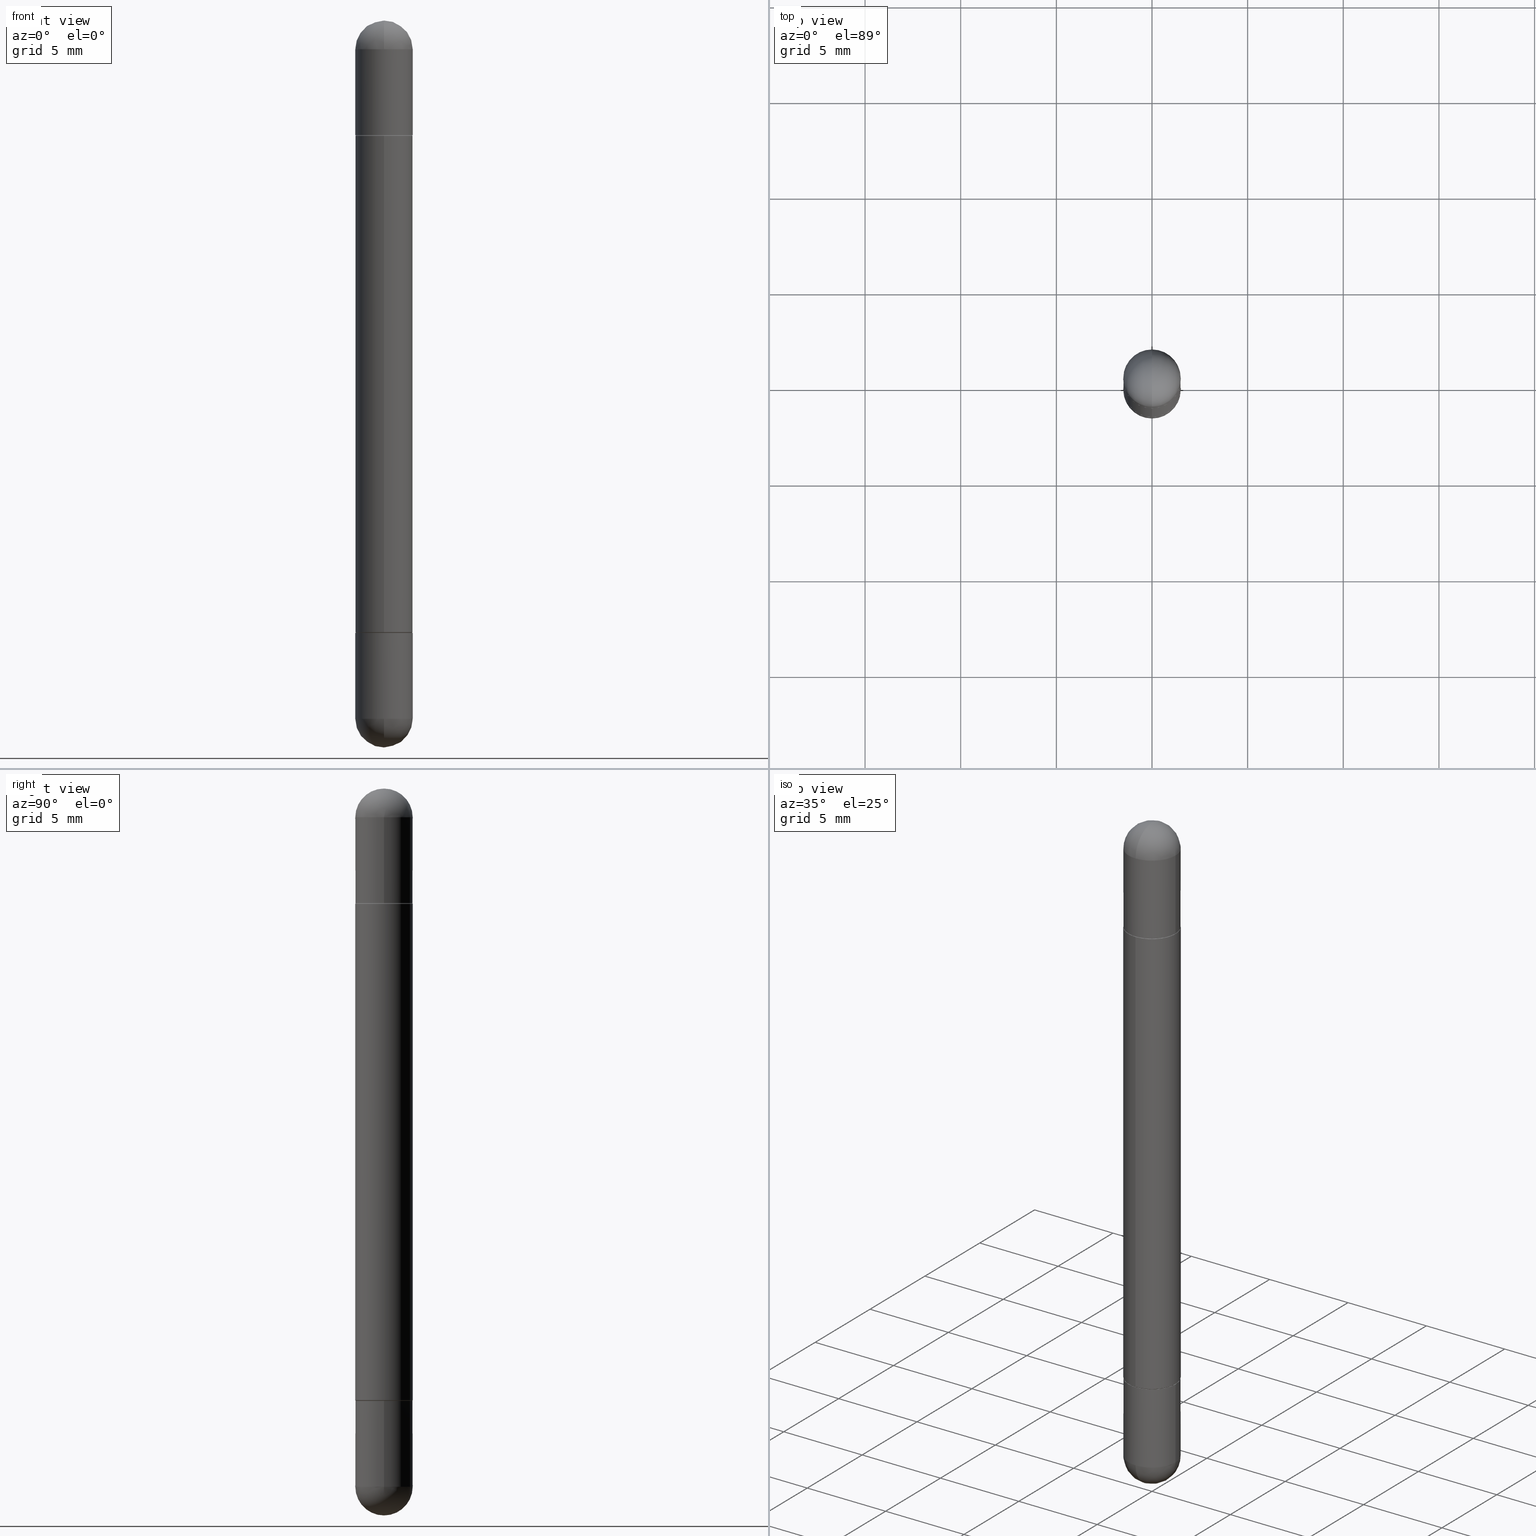
[diagram: canonical four-view strip — front | top / right | iso, engineering-drawing reading convention]
A machine part, canonical four-view strip (front | top / right | iso — engineering-drawing reading convention). The complete STEP part file that produces these views, byte-faithful:
ISO-10303-21;
HEADER;
FILE_DESCRIPTION (( 'STEP AP203' ),
    '1' );
FILE_NAME ('41422.STEP',
    '2024-03-01T12:44:34',
    ( '' ),
    ( '' ),
    'SwSTEP 2.0',
    'SolidWorks 2023',
    '' );
FILE_SCHEMA (( 'CONFIG_CONTROL_DESIGN' ));
ENDSEC;

DATA;
#1 = ADVANCED_FACE ( 'NONE', ( #373 ), #294, .T. ) ;
#2 = PLANE ( 'NONE',  #302 ) ;
#3 = ORIENTED_EDGE ( 'NONE', *, *, #510, .F. ) ;
#4 = FACE_OUTER_BOUND ( 'NONE', #52, .T. ) ;
#5 = LINE ( 'NONE', #512, #705 ) ;
#6 = FACE_OUTER_BOUND ( 'NONE', #538, .T. ) ;
#7 = AXIS2_PLACEMENT_3D ( 'NONE', #299, #610, #565 ) ;
#8 = CIRCLE ( 'NONE', #452, 0.05905000000000025506 ) ;
#9 = DIRECTION ( 'NONE',  ( 6.982962677686265922E-15, 1.000000000000000000, -4.626330217890349615E-15 ) ) ;
#10 = VERTEX_POINT ( 'NONE', #435 ) ;
#11 = DIRECTION ( 'NONE',  ( -6.982962677686265922E-15, -1.000000000000000000, -3.529519371659252878E-15 ) ) ;
#12 = ORIENTED_EDGE ( 'NONE', *, *, #207, .T. ) ;
#13 = CARTESIAN_POINT ( 'NONE',  ( 4.123439461174049462E-16, 0.05904999999999561988, -1.259900000000000020 ) ) ;
#14 = DIRECTION ( 'NONE',  ( -2.436217411608901201E-29, 3.504729862432993051E-15, -1.000000000000000000 ) ) ;
#15 = CARTESIAN_POINT ( 'NONE',  ( 0.05905000000000001914, -4.811261284925853162E-15, -0.2362000000000003264 ) ) ;
#16 = PRODUCT_RELATED_PRODUCT_CATEGORY ( 'detail', '', ( #49 ) ) ;
#17 = AXIS2_PLACEMENT_3D ( 'NONE', #131, #76, #522 ) ;
#18 = AXIS2_PLACEMENT_3D ( 'NONE', #549, #357, #617 ) ;
#19 = EDGE_CURVE ( 'NONE', #250, #491, #613, .T. ) ;
#20 = ORIENTED_EDGE ( 'NONE', *, *, #247, .F. ) ;
#21 = DIRECTION ( 'NONE',  ( -6.982962677686265922E-15, -1.000000000000000000, -3.529519371659252878E-15 ) ) ;
#22 = FACE_OUTER_BOUND ( 'NONE', #676, .T. ) ;
#23 = UNCERTAINTY_MEASURE_WITH_UNIT (LENGTH_MEASURE( 1.000000000000000082E-05 ), #346, 'distance_accuracy_value', 'NONE');
#24 = VERTEX_POINT ( 'NONE', #498 ) ;
#25 = FACE_OUTER_BOUND ( 'NONE', #112, .T. ) ;
#26 = ORIENTED_EDGE ( 'NONE', *, *, #480, .F. ) ;
#27 = DIRECTION ( 'NONE',  ( 1.000000000000000000, -6.982962677686266711E-15, 0.000000000000000000 ) ) ;
#28 = VERTEX_POINT ( 'NONE', #230 ) ;
#29 = EDGE_CURVE ( 'NONE', #659, #390, #665, .T. ) ;
#30 = ORIENTED_EDGE ( 'NONE', *, *, #480, .T. ) ;
#31 = PERSON ( 'UNSPECIFIED', 'UNSPECIFIED', 'UNSPECIFIED', ('UNSPECIFIED'), ('UNSPECIFIED'), ('UNSPECIFIED') ) ;
#32 = CARTESIAN_POINT ( 'NONE',  ( -4.051124067683763770E-16, -0.05905000000000539678, -0.05905000000000049099 ) ) ;
#33 = ADVANCED_FACE ( 'NONE', ( #363 ), #689, .T. ) ;
#34 = CARTESIAN_POINT ( 'NONE',  ( -4.123439461173503176E-16, -0.05905000000000273225, -0.7480500000000001037 ) ) ;
#35 = AXIS2_PLACEMENT_3D ( 'NONE', #566, #530, #133 ) ;
#36 = AXIS2_PLACEMENT_3D ( 'NONE', #764, #195, #11 ) ;
#37 = DIRECTION ( 'NONE',  ( -2.445468806185136597E-29, 3.491481338843145583E-15, -1.000000000000000000 ) ) ;
#38 = DIRECTION ( 'NONE',  ( 4.851104656541212766E-15, 0.7071067811865862085, -0.7071067811865088260 ) ) ;
#39 = DIRECTION ( 'NONE',  ( 6.982962677686266711E-15, 1.000000000000000000, 0.000000000000000000 ) ) ;
#40 = EDGE_LOOP ( 'NONE', ( #283, #641, #144, #307 ) ) ;
#41 = ADVANCED_FACE ( 'NONE', ( #63 ), #684, .F. ) ;
#42 = ORIENTED_EDGE ( 'NONE', *, *, #628, .F. ) ;
#43 = DIRECTION ( 'NONE',  ( -4.937700262164799689E-15, -0.7071067811865812125, 0.7071067811865135999 ) ) ;
#44 = AXIS2_PLACEMENT_3D ( 'NONE', #392, #326, #389 ) ;
#45 = PERSON_AND_ORGANIZATION ( #31, #414 ) ;
#46 = AXIS2_PLACEMENT_3D ( 'NONE', #257, #520, #767 ) ;
#47 = DIRECTION ( 'NONE',  ( -6.982962677686265922E-15, -1.000000000000000000, -3.504729862432993051E-15 ) ) ;
#48 = LOCAL_TIME ( 7, 44, 34.00000000000000000, #285 ) ;
#49 = PRODUCT ( '41422', '41422', '', ( #496 ) ) ;
#50 = ORIENTED_EDGE ( 'NONE', *, *, #755, .F. ) ;
#51 = DIRECTION ( 'NONE',  ( -2.436217411608901481E-29, 3.504729862432993051E-15, 1.000000000000000000 ) ) ;
#52 = EDGE_LOOP ( 'NONE', ( #470, #750, #297, #685 ) ) ;
#53 = PERSON_AND_ORGANIZATION ( #31, #414 ) ;
#54 = DIRECTION ( 'NONE',  ( 1.000000000000000000, -6.982962677686270655E-15, 0.000000000000000000 ) ) ;
#55 = CC_DESIGN_DATE_AND_TIME_ASSIGNMENT ( #227, #360, ( #268 ) ) ;
#56 = ORIENTED_EDGE ( 'NONE', *, *, #505, .T. ) ;
#57 = DIRECTION ( 'NONE',  ( -6.982962677686265922E-15, -1.000000000000000000, -4.626330217890360659E-15 ) ) ;
#58 = DATE_AND_TIME ( #110, #241 ) ;
#59 = CLOSED_SHELL ( 'NONE', ( #576, #551, #198, #416, #673, #509, #97, #262 ) ) ;
#60 = CARTESIAN_POINT ( 'NONE',  ( 3.081046148912652946E-29, -4.398917338808479031E-15, -0.2362000000000003264 ) ) ;
#61 = AXIS2_PLACEMENT_3D ( 'NONE', #150, #279, #332 ) ;
#62 = VECTOR ( 'NONE', #38, 39.37007874015748143 ) ;
#63 = FACE_OUTER_BOUND ( 'NONE', #408, .T. ) ;
#64 = ORIENTED_EDGE ( 'NONE', *, *, #329, .T. ) ;
#65 = DIRECTION ( 'NONE',  ( -6.982962677686265922E-15, -1.000000000000000000, 4.706025828879003837E-15 ) ) ;
#66 = DIRECTION ( 'NONE',  ( -2.445468806185136877E-29, 3.491481338843145188E-15, 1.000000000000000000 ) ) ;
#67 = ADVANCED_FACE ( 'NONE', ( #495 ), #170, .T. ) ;
#68 = CARTESIAN_POINT ( 'NONE',  ( 3.183141170014464762E-29, -5.491615626124592102E-15, -1.437049999999999939 ) ) ;
#69 = CARTESIAN_POINT ( 'NONE',  ( 3.514260947928350449E-29, -5.017433257984542594E-15, -1.437049999999999939 ) ) ;
#70 = CARTESIAN_POINT ( 'NONE',  ( 3.330070981488499955E-29, -5.694171829508798064E-15, -3.414809992080329023E-17 ) ) ;
#71 = ORIENTED_EDGE ( 'NONE', *, *, #461, .T. ) ;
#72 = DIRECTION ( 'NONE',  ( -2.436217411608901481E-29, 3.504729862432993051E-15, 1.000000000000000000 ) ) ;
#73 = AXIS2_PLACEMENT_3D ( 'NONE', #728, #157, #39 ) ;
#74 = CIRCLE ( 'NONE', #321, 0.05905000000000001914 ) ;
#75 = CC_DESIGN_APPROVAL ( #377, ( #515 ) ) ;
#76 = DIRECTION ( 'NONE',  ( -2.436217411608901481E-29, 3.504729862432993051E-15, -1.000000000000000000 ) ) ;
#77 = PLANE ( 'NONE',  #189 ) ;
#78 = ORIENTED_EDGE ( 'NONE', *, *, #635, .T. ) ;
#79 = DIRECTION ( 'NONE',  ( -2.436217411608901762E-29, 3.504729862432993051E-15, -1.000000000000000000 ) ) ;
#80 = SPHERICAL_SURFACE ( 'NONE', #759, 0.05905000000000025506 ) ;
#81 = ADVANCED_FACE ( 'NONE', ( #754 ), #300, .T. ) ;
#82 = ORIENTED_EDGE ( 'NONE', *, *, #284, .F. ) ;
#83 = FACE_OUTER_BOUND ( 'NONE', #691, .T. ) ;
#84 = CARTESIAN_POINT ( 'NONE',  ( 3.183141170014464762E-29, -5.491615626124592102E-15, -0.05905000000000028976 ) ) ;
#85 = AXIS2_PLACEMENT_3D ( 'NONE', #550, #343, #282 ) ;
#86 = PRODUCT_DEFINITION_FORMATION_WITH_SPECIFIED_SOURCE ( 'ANY', '', #49, .NOT_KNOWN. ) ;
#87 = DIRECTION ( 'NONE',  ( 2.436217411608901481E-29, -3.504729862432993051E-15, 1.000000000000000000 ) ) ;
#88 = DIRECTION ( 'NONE',  ( -2.445468806185136597E-29, 3.491481338843145583E-15, -1.000000000000000000 ) ) ;
#89 = VERTEX_POINT ( 'NONE', #261 ) ;
#90 = EDGE_CURVE ( 'NONE', #10, #471, #542, .T. ) ;
#91 =( NAMED_UNIT ( * ) PLANE_ANGLE_UNIT ( ) SI_UNIT ( $, .RADIAN. ) );
#92 = CYLINDRICAL_SURFACE ( 'NONE', #85, 0.05905000000000001914 ) ;
#93 = ADVANCED_FACE ( 'NONE', ( #776 ), #191, .F. ) ;
#94 = CARTESIAN_POINT ( 'NONE',  ( -0.05905000000000001914, -4.303062891628101254E-15, -0.2362000000000003264 ) ) ;
#95 = CARTESIAN_POINT ( 'NONE',  ( 3.081046148912652946E-29, -4.398917338808479031E-15, -0.2362000000000003264 ) ) ;
#96 = ADVANCED_BREP_SHAPE_REPRESENTATION ( '41422', ( #454, #199, #730, #447, #192, #18 ), #502 ) ;
#97 = ADVANCED_FACE ( 'NONE', ( #328 ), #499, .T. ) ;
#98 = CIRCLE ( 'NONE', #266, 0.05905000000000001914 ) ;
#99 = FACE_OUTER_BOUND ( 'NONE', #627, .T. ) ;
#100 = EDGE_CURVE ( 'NONE', #89, #368, #483, .T. ) ;
#101 = CARTESIAN_POINT ( 'NONE',  ( -4.123439461173447462E-16, -0.05905000000000460575, -0.2372000000000006048 ) ) ;
#102 = EDGE_CURVE ( 'NONE', #10, #688, #5, .T. ) ;
#103 = CARTESIAN_POINT ( 'NONE',  ( 3.081046148912652946E-29, -4.398917338808479031E-15, -0.2362000000000003264 ) ) ;
#104 = ORIENTED_EDGE ( 'NONE', *, *, #183, .T. ) ;
#105 = CONICAL_SURFACE ( 'NONE', #36, 0.05805000000000003213, 0.7853981633974995713 ) ;
#106 = DIRECTION ( 'NONE',  ( 1.000000000000000000, -6.982962677686270655E-15, 0.000000000000000000 ) ) ;
#107 = VECTOR ( 'NONE', #331, 39.37007874015748143 ) ;
#108 = VERTEX_POINT ( 'NONE', #15 ) ;
#109 = ADVANCED_FACE ( 'NONE', ( #523 ), #80, .T. ) ;
#110 = CALENDAR_DATE ( 2024, 1, 3 ) ;
#111 = CARTESIAN_POINT ( 'NONE',  ( 3.069390316886054826E-29, -4.415609153679327857E-15, -1.259899999999999798 ) ) ;
#112 = EDGE_LOOP ( 'NONE', ( #791, #291, #608, #78 ) ) ;
#113 = VERTEX_POINT ( 'NONE', #457 ) ;
#114 = PERSON_AND_ORGANIZATION_ROLE ( 'creator' ) ;
#115 = FACE_OUTER_BOUND ( 'NONE', #430, .T. ) ;
#116 = DIRECTION ( 'NONE',  ( -2.436217411608901481E-29, 3.504729862432993051E-15, -1.000000000000000000 ) ) ;
#117 = VECTOR ( 'NONE', #66, 39.37007874015748143 ) ;
#118 = SPHERICAL_SURFACE ( 'NONE', #334, 0.05905000000000025506 ) ;
#119 = VECTOR ( 'NONE', #672, 39.37007874015748854 ) ;
#120 = AXIS2_PLACEMENT_3D ( 'NONE', #219, #655, #21 ) ;
#121 = ORIENTED_EDGE ( 'NONE', *, *, #258, .F. ) ;
#122 = APPROVAL ( #351, 'UNSPECIFIED' ) ;
#123 = EDGE_LOOP ( 'NONE', ( #149, #637, #128, #271 ) ) ;
#124 = ORIENTED_EDGE ( 'NONE', *, *, #284, .T. ) ;
#125 = DIRECTION ( 'NONE',  ( -6.982962677686265922E-15, -1.000000000000000000, -3.469747663417765169E-15 ) ) ;
#126 = DIRECTION ( 'NONE',  ( -2.436217411608901762E-29, 3.504729862432993051E-15, -1.000000000000000000 ) ) ;
#127 = DIRECTION ( 'NONE',  ( -0.000000000000000000, -0.000000000000000000, -1.000000000000000000 ) ) ;
#128 = ORIENTED_EDGE ( 'NONE', *, *, #755, .T. ) ;
#129 = DIRECTION ( 'NONE',  ( -2.445468806185136597E-29, 3.491481338843145583E-15, 1.000000000000000000 ) ) ;
#130 = APPLICATION_CONTEXT ( 'configuration controlled 3d designs of mechanical parts and assemblies' ) ;
#131 = CARTESIAN_POINT ( 'NONE',  ( 0.000000000000000000, 0.000000000000000000, -1.496100000000000207 ) ) ;
#132 = AXIS2_PLACEMENT_3D ( 'NONE', #197, #443, #697 ) ;
#133 = DIRECTION ( 'NONE',  ( 1.000000000000000000, -6.982962677686266711E-15, 4.876176775795935793E-29 ) ) ;
#134 = AXIS2_PLACEMENT_3D ( 'NONE', #103, #558, #106 ) ;
#135 = VECTOR ( 'NONE', #325, 39.37007874015748143 ) ;
#136 = EDGE_CURVE ( 'NONE', #462, #365, #322, .T. ) ;
#137 = EDGE_CURVE ( 'NONE', #633, #233, #813, .T. ) ;
#138 = DIRECTION ( 'NONE',  ( 2.436217411608901481E-29, -3.504729862432993051E-15, 1.000000000000000000 ) ) ;
#139 = DIRECTION ( 'NONE',  ( -6.982962677686265922E-15, -1.000000000000000000, 4.706025828879003837E-15 ) ) ;
#140 = EDGE_LOOP ( 'NONE', ( #398, #774 ) ) ;
#141 = CARTESIAN_POINT ( 'NONE',  ( 3.514260947928350449E-29, -5.017433257984542594E-15, -0.05905000000000028976 ) ) ;
#142 = EDGE_CURVE ( 'NONE', #89, #633, #448, .T. ) ;
#143 = DIRECTION ( 'NONE',  ( 1.000000000000000000, -6.982962677686270655E-15, 0.000000000000000000 ) ) ;
#144 = ORIENTED_EDGE ( 'NONE', *, *, #224, .F. ) ;
#145 = DIRECTION ( 'NONE',  ( -2.445468806185136597E-29, 3.491481338843145583E-15, 1.000000000000000000 ) ) ;
#146 = DIRECTION ( 'NONE',  ( 0.000000000000000000, 0.000000000000000000, 1.000000000000000000 ) ) ;
#147 = CONICAL_SURFACE ( 'NONE', #614, 0.05805000000000003213, 0.7853981633974995713 ) ;
#148 = AXIS2_PLACEMENT_3D ( 'NONE', #13, #690, #260 ) ;
#149 = ORIENTED_EDGE ( 'NONE', *, *, #333, .F. ) ;
#150 = CARTESIAN_POINT ( 'NONE',  ( 3.081046148912652946E-29, -4.398917338808479031E-15, -1.259899999999999798 ) ) ;
#151 = EDGE_CURVE ( 'NONE', #324, #250, #439, .T. ) ;
#152 = ORIENTED_EDGE ( 'NONE', *, *, #500, .F. ) ;
#153 = LINE ( 'NONE', #269, #161 ) ;
#154 = CARTESIAN_POINT ( 'NONE',  ( 4.051124067684280967E-16, 0.05904999999999579335, -1.258900000000000130 ) ) ;
#155 = ORIENTED_EDGE ( 'NONE', *, *, #628, .T. ) ;
#156 = CARTESIAN_POINT ( 'NONE',  ( 3.514260947928350449E-29, -5.017433257984542594E-15, -0.05905000000000028976 ) ) ;
#157 = DIRECTION ( 'NONE',  ( 1.000000000000000000, -6.982962677686265922E-15, 4.883557194083112340E-29 ) ) ;
#158 = EDGE_CURVE ( 'NONE', #688, #365, #653, .T. ) ;
#159 = AXIS2_PLACEMENT_3D ( 'NONE', #648, #249, #254 ) ;
#160 = AXIS2_PLACEMENT_3D ( 'NONE', #674, #494, #422 ) ;
#161 = VECTOR ( 'NONE', #792, 39.37007874015748143 ) ;
#162 = APPLICATION_PROTOCOL_DEFINITION ( 'international standard', 'config_control_design', 1994, #796 ) ;
#163 = CARTESIAN_POINT ( 'NONE',  ( -4.195754854663065087E-16, -0.05905000000000539678, -1.437049999999999716 ) ) ;
#164 = VERTEX_POINT ( 'NONE', #453 ) ;
#165 = PERSON_AND_ORGANIZATION_ROLE ( 'design_supplier' ) ;
#166 = ORIENTED_EDGE ( 'NONE', *, *, #652, .T. ) ;
#167 = CARTESIAN_POINT ( 'NONE',  ( 0.000000000000000000, 0.000000000000000000, 0.000000000000000000 ) ) ;
#168 = CALENDAR_DATE ( 2024, 1, 3 ) ;
#169 = DIRECTION ( 'NONE',  ( 2.445468806185136597E-29, -3.491481338843145583E-15, 1.000000000000000000 ) ) ;
#170 = CYLINDRICAL_SURFACE ( 'NONE', #301, 0.05905000000000010935 ) ;
#171 = CIRCLE ( 'NONE', #134, 0.05905000000000001914 ) ;
#172 = PERSON_AND_ORGANIZATION ( #31, #414 ) ;
#173 = CARTESIAN_POINT ( 'NONE',  ( 3.514260947928350449E-29, -5.017433257984542594E-15, -0.05905000000000028976 ) ) ;
#174 = ADVANCED_FACE ( 'NONE', ( #639 ), #265, .T. ) ;
#175 = DIRECTION ( 'NONE',  ( 2.436217411608901481E-29, -3.504729862432993051E-15, 1.000000000000000000 ) ) ;
#176 = ORIENTED_EDGE ( 'NONE', *, *, #136, .T. ) ;
#177 = PERSON_AND_ORGANIZATION ( #31, #414 ) ;
#178 = ORIENTED_EDGE ( 'NONE', *, *, #100, .T. ) ;
#179 = CARTESIAN_POINT ( 'NONE',  ( 3.069390316886054826E-29, -4.415609153679327857E-15, -0.2362000000000003264 ) ) ;
#180 = ORIENTED_EDGE ( 'NONE', *, *, #142, .T. ) ;
#181 = ORIENTED_EDGE ( 'NONE', *, *, #183, .F. ) ;
#182 = ORIENTED_EDGE ( 'NONE', *, *, #29, .F. ) ;
#183 = EDGE_CURVE ( 'NONE', #330, #10, #513, .T. ) ;
#184 = CARTESIAN_POINT ( 'NONE',  ( -4.123439461173747722E-16, -0.05905000000000010935, -1.496100000000000430 ) ) ;
#185 = ORIENTED_EDGE ( 'NONE', *, *, #369, .T. ) ;
#186 = ORIENTED_EDGE ( 'NONE', *, *, #773, .F. ) ;
#187 = AXIS2_PLACEMENT_3D ( 'NONE', #716, #700, #143 ) ;
#188 = DIRECTION ( 'NONE',  ( 6.982962677686265922E-15, 1.000000000000000000, 3.469747663417762014E-15 ) ) ;
#189 = AXIS2_PLACEMENT_3D ( 'NONE', #789, #146, #460 ) ;
#190 = CIRCLE ( 'NONE', #580, 0.05905000000000010935 ) ;
#191 = PLANE ( 'NONE',  #629 ) ;
#192 = MANIFOLD_SOLID_BREP ( 'Combine1', #59 ) ;
#193 = FACE_OUTER_BOUND ( 'NONE', #438, .T. ) ;
#194 = VERTEX_POINT ( 'NONE', #578 ) ;
#195 = DIRECTION ( 'NONE',  ( -2.436217411608901481E-29, 3.504729862432993051E-15, -1.000000000000000000 ) ) ;
#196 = CARTESIAN_POINT ( 'NONE',  ( 3.982519087706682683E-16, 0.05804999999999561899, -0.2362000000000001321 ) ) ;
#197 = CARTESIAN_POINT ( 'NONE',  ( 3.066954099474445427E-29, -4.412104423816894062E-15, -0.2372000000000004105 ) ) ;
#198 = ADVANCED_FACE ( 'NONE', ( #6 ), #105, .T. ) ;
#199 = MANIFOLD_SOLID_BREP ( 'Mirror4[1]', #411 ) ;
#200 = DIRECTION ( 'NONE',  ( -2.436217411608901481E-29, 3.504729862432993051E-15, 1.000000000000000000 ) ) ;
#201 = CARTESIAN_POINT ( 'NONE',  ( 4.051124067684096571E-16, 0.05905000000000010935, -1.496099999999999985 ) ) ;
#202 = VECTOR ( 'NONE', #43, 39.37007874015748854 ) ;
#203 = AXIS2_PLACEMENT_3D ( 'NONE', #532, #777, #396 ) ;
#204 = ORIENTED_EDGE ( 'NONE', *, *, #486, .T. ) ;
#205 = DIRECTION ( 'NONE',  ( 1.000000000000000000, -6.982962677686270655E-15, 0.000000000000000000 ) ) ;
#206 = DIRECTION ( 'NONE',  ( -2.445468806185136877E-29, 3.491481338843145188E-15, 1.000000000000000000 ) ) ;
#207 = EDGE_CURVE ( 'NONE', #194, #350, #440, .T. ) ;
#208 = CARTESIAN_POINT ( 'NONE',  ( 3.982519087706682683E-16, 0.05804999999999561899, -0.2362000000000001321 ) ) ;
#209 = ADVANCED_FACE ( 'NONE', ( #645 ), #77, .F. ) ;
#210 = CYLINDRICAL_SURFACE ( 'NONE', #631, 0.05905000000000001914 ) ;
#211 = ORIENTED_EDGE ( 'NONE', *, *, #734, .T. ) ;
#212 = DIRECTION ( 'NONE',  ( -2.445468806185136877E-29, 3.491481338843145188E-15, -1.000000000000000000 ) ) ;
#213 = AXIS2_PLACEMENT_3D ( 'NONE', #167, #429, #420 ) ;
#214 = AXIS2_PLACEMENT_3D ( 'NONE', #361, #169, #54 ) ;
#215 = CIRCLE ( 'NONE', #594, 0.05905000000000001914 ) ;
#216 = ORIENTED_EDGE ( 'NONE', *, *, #652, .F. ) ;
#217 = DIRECTION ( 'NONE',  ( -2.445468806185136597E-29, 3.491481338843145583E-15, 1.000000000000000000 ) ) ;
#218 = PLANE ( 'NONE',  #468 ) ;
#219 = CARTESIAN_POINT ( 'NONE',  ( 3.069390316886054826E-29, -4.415609153679327857E-15, -0.2362000000000003264 ) ) ;
#220 = CARTESIAN_POINT ( 'NONE',  ( -0.05905000000000001914, 4.051124067684090655E-16, -1.496100000000000207 ) ) ;
#221 = EDGE_CURVE ( 'NONE', #24, #471, #252, .T. ) ;
#222 = COORDINATED_UNIVERSAL_TIME_OFFSET ( 5, 0, .BEHIND. ) ;
#223 = DIRECTION ( 'NONE',  ( -1.000000000000000000, 6.982962677686265922E-15, 4.883557194083112340E-29 ) ) ;
#224 = EDGE_CURVE ( 'NONE', #721, #228, #815, .T. ) ;
#225 = VECTOR ( 'NONE', #126, 39.37007874015748143 ) ;
#226 = AXIS2_PLACEMENT_3D ( 'NONE', #574, #518, #762 ) ;
#227 = DATE_AND_TIME ( #168, #48 ) ;
#228 = VERTEX_POINT ( 'NONE', #154 ) ;
#229 = DIRECTION ( 'NONE',  ( -2.445468806185136877E-29, 3.491481338843145188E-15, -1.000000000000000000 ) ) ;
#230 = CARTESIAN_POINT ( 'NONE',  ( -4.053609834396572528E-16, -0.05805000000000444527, -1.259899999999999576 ) ) ;
#231 = PERSON_AND_ORGANIZATION_ROLE ( 'design_owner' ) ;
#232 = DIRECTION ( 'NONE',  ( -2.445468806185136877E-29, 3.491481338843145188E-15, -1.000000000000000000 ) ) ;
#233 = VERTEX_POINT ( 'NONE', #34 ) ;
#234 = PERSON_AND_ORGANIZATION_ROLE ( 'creator' ) ;
#235 = DIRECTION ( 'NONE',  ( -6.982962677686265922E-15, -1.000000000000000000, -3.529519371659252878E-15 ) ) ;
#236 = DIRECTION ( 'NONE',  ( 2.445468806185136597E-29, -3.491481338843145583E-15, 1.000000000000000000 ) ) ;
#237 = VERTEX_POINT ( 'NONE', #548 ) ;
#238 = CIRCLE ( 'NONE', #319, 0.05805000000000003213 ) ;
#239 = DATE_AND_TIME ( #421, #723 ) ;
#240 = ADVANCED_FACE ( 'NONE', ( #22 ), #92, .T. ) ;
#241 = LOCAL_TIME ( 7, 44, 34.00000000000000000, #609 ) ;
#242 = DIRECTION ( 'NONE',  ( -2.436217411608901481E-29, 3.504729862432993051E-15, -1.000000000000000000 ) ) ;
#243 = EDGE_LOOP ( 'NONE', ( #393, #534, #30, #121, #752 ) ) ;
#244 = EDGE_CURVE ( 'NONE', #365, #688, #555, .T. ) ;
#245 = CARTESIAN_POINT ( 'NONE',  ( 0.05905000000000001914, -4.811261284925853162E-15, -0.2362000000000003264 ) ) ;
#246 = ORIENTED_EDGE ( 'NONE', *, *, #383, .T. ) ;
#247 = EDGE_CURVE ( 'NONE', #250, #592, #467, .T. ) ;
#248 = SPHERICAL_SURFACE ( 'NONE', #816, 0.05905000000000025506 ) ;
#249 = DIRECTION ( 'NONE',  ( -2.445468806185136597E-29, 3.491481338843145583E-15, 1.000000000000000000 ) ) ;
#250 = VERTEX_POINT ( 'NONE', #724 ) ;
#251 = DIRECTION ( 'NONE',  ( -6.982962677686265922E-15, -1.000000000000000000, -3.529519371659252878E-15 ) ) ;
#252 = CIRCLE ( 'NONE', #73, 0.05905000000000025506 ) ;
#253 = APPROVAL_PERSON_ORGANIZATION ( #172, #280, #427 ) ;
#254 = DIRECTION ( 'NONE',  ( 1.000000000000000000, -6.982962677686270655E-15, 0.000000000000000000 ) ) ;
#255 = CARTESIAN_POINT ( 'NONE',  ( 3.066954099474445427E-29, -4.412104423816894062E-15, -0.2372000000000004105 ) ) ;
#256 = EDGE_LOOP ( 'NONE', ( #402, #582 ) ) ;
#257 = CARTESIAN_POINT ( 'NONE',  ( 3.069390316886054826E-29, -4.415609153679327857E-15, -0.2362000000000003264 ) ) ;
#258 = EDGE_CURVE ( 'NONE', #682, #463, #605, .T. ) ;
#259 = ORIENTED_EDGE ( 'NONE', *, *, #312, .F. ) ;
#260 = DIRECTION ( 'NONE',  ( -1.000000000000000000, 6.982962677686265922E-15, -4.876176775795935793E-29 ) ) ;
#261 = CARTESIAN_POINT ( 'NONE',  ( 4.051124067684410143E-16, 0.05904999999999580029, -0.2372000000000002162 ) ) ;
#262 = ADVANCED_FACE ( 'NONE', ( #336 ), #218, .F. ) ;
#263 = FACE_OUTER_BOUND ( 'NONE', #40, .T. ) ;
#264 = VERTEX_POINT ( 'NONE', #718 ) ;
#265 = SPHERICAL_SURFACE ( 'NONE', #44, 0.05905000000000025506 ) ;
#266 = AXIS2_PLACEMENT_3D ( 'NONE', #173, #295, #561 ) ;
#267 = APPROVAL_PERSON_ORGANIZATION ( #489, #122, #364 ) ;
#268 = PRODUCT_DEFINITION ( 'UNKNOWN', '', #86, #492 ) ;
#269 = CARTESIAN_POINT ( 'NONE',  ( -4.123439461173747722E-16, -0.05905000000000010935, -1.496100000000000430 ) ) ;
#270 = FACE_OUTER_BOUND ( 'NONE', #243, .T. ) ;
#271 = ORIENTED_EDGE ( 'NONE', *, *, #474, .T. ) ;
#272 = CARTESIAN_POINT ( 'NONE',  ( 3.069390316886054826E-29, -4.415609153679327857E-15, -0.2362000000000003264 ) ) ;
#273 = CARTESIAN_POINT ( 'NONE',  ( 4.016821577695546660E-16, 0.05804999999999561899, -0.2362000000000001321 ) ) ;
#274 = ORIENTED_EDGE ( 'NONE', *, *, #540, .F. ) ;
#275 = CARTESIAN_POINT ( 'NONE',  ( -4.123439461173447462E-16, -0.05905000000000461963, -1.258899999999999464 ) ) ;
#276 = CARTESIAN_POINT ( 'NONE',  ( 3.069390316886054826E-29, -4.415609153679327857E-15, -1.259899999999999798 ) ) ;
#277 = AXIS2_PLACEMENT_3D ( 'NONE', #276, #482, #545 ) ;
#278 = CARTESIAN_POINT ( 'NONE',  ( 4.123439461174084467E-16, 0.05904999999999487742, -0.05905000000000008159 ) ) ;
#279 = DIRECTION ( 'NONE',  ( -2.445468806185136597E-29, 3.491481338843145583E-15, 1.000000000000000000 ) ) ;
#280 = APPROVAL ( #348, 'UNSPECIFIED' ) ;
#281 = FACE_OUTER_BOUND ( 'NONE', #434, .T. ) ;
#282 = DIRECTION ( 'NONE',  ( 1.000000000000000000, -6.982962677686266711E-15, 0.000000000000000000 ) ) ;
#283 = ORIENTED_EDGE ( 'NONE', *, *, #500, .T. ) ;
#284 = EDGE_CURVE ( 'NONE', #108, #780, #317, .T. ) ;
#285 = COORDINATED_UNIVERSAL_TIME_OFFSET ( 5, 0, .BEHIND. ) ;
#286 = DIRECTION ( 'NONE',  ( -2.436217411608901201E-29, 3.504729862432993051E-15, -1.000000000000000000 ) ) ;
#287 = EDGE_LOOP ( 'NONE', ( #702, #720, #527, #771 ) ) ;
#288 = CLOSED_SHELL ( 'NONE', ( #33, #562, #109, #560, #81 ) ) ;
#289 = VECTOR ( 'NONE', #793, 39.37007874015748143 ) ;
#290 = VECTOR ( 'NONE', #79, 39.37007874015748143 ) ;
#291 = ORIENTED_EDGE ( 'NONE', *, *, #207, .F. ) ;
#292 = CARTESIAN_POINT ( 'NONE',  ( 3.514260947928350449E-29, -5.017433257984542594E-15, -0.05905000000000028976 ) ) ;
#293 = EDGE_LOOP ( 'NONE', ( #521, #675, #646, #181 ) ) ;
#294 = CYLINDRICAL_SURFACE ( 'NONE', #602, 0.05905000000000010935 ) ;
#295 = DIRECTION ( 'NONE',  ( 2.445468806185136597E-29, -3.491481338843145583E-15, 1.000000000000000000 ) ) ;
#296 = EDGE_LOOP ( 'NONE', ( #650, #176, #395, #374, #619 ) ) ;
#297 = ORIENTED_EDGE ( 'NONE', *, *, #151, .T. ) ;
#298 = CALENDAR_DATE ( 2024, 1, 3 ) ;
#299 = CARTESIAN_POINT ( 'NONE',  ( 3.183141170014464762E-29, -5.491615626124592102E-15, -0.05905000000000028976 ) ) ;
#300 = CYLINDRICAL_SURFACE ( 'NONE', #35, 0.05905000000000001914 ) ;
#301 = AXIS2_PLACEMENT_3D ( 'NONE', #423, #116, #57 ) ;
#302 = AXIS2_PLACEMENT_3D ( 'NONE', #179, #286, #47 ) ;
#303 = ORIENTED_EDGE ( 'NONE', *, *, #413, .F. ) ;
#304 = CIRCLE ( 'NONE', #426, 0.05905000000000001914 ) ;
#305 = LINE ( 'NONE', #743, #202 ) ;
#306 = PRODUCT_DEFINITION_SHAPE ( 'NONE', 'NONE',  #268 ) ;
#307 = ORIENTED_EDGE ( 'NONE', *, *, #394, .F. ) ;
#308 = ORIENTED_EDGE ( 'NONE', *, *, #224, .T. ) ;
#309 = EDGE_CURVE ( 'NONE', #24, #330, #760, .T. ) ;
#310 = ADVANCED_FACE ( 'NONE', ( #99 ), #210, .T. ) ;
#311 = CARTESIAN_POINT ( 'NONE',  ( 4.016821577695546660E-16, 0.05804999999999561899, -0.2362000000000001321 ) ) ;
#312 = EDGE_CURVE ( 'NONE', #660, #324, #567, .T. ) ;
#313 = ORIENTED_EDGE ( 'NONE', *, *, #258, .T. ) ;
#314 = CARTESIAN_POINT ( 'NONE',  ( 3.081046148912652946E-29, -4.398917338808479031E-15, -1.259899999999999798 ) ) ;
#315 = DIRECTION ( 'NONE',  ( 2.436217411608901481E-29, -3.504729862432993051E-15, 1.000000000000000000 ) ) ;
#316 = DIRECTION ( 'NONE',  ( 1.000000000000000000, -6.982962677686270655E-15, 0.000000000000000000 ) ) ;
#317 = CIRCLE ( 'NONE', #801, 0.05905000000000001914 ) ;
#318 = LINE ( 'NONE', #196, #557 ) ;
#319 = AXIS2_PLACEMENT_3D ( 'NONE', #111, #51, #490 ) ;
#320 = ORIENTED_EDGE ( 'NONE', *, *, #729, .T. ) ;
#321 = AXIS2_PLACEMENT_3D ( 'NONE', #662, #217, #472 ) ;
#322 = LINE ( 'NONE', #711, #117 ) ;
#323 = LOCAL_TIME ( 7, 44, 34.00000000000000000, #625 ) ;
#324 = VERTEX_POINT ( 'NONE', #601 ) ;
#325 = DIRECTION ( 'NONE',  ( -2.436217411608901762E-29, 3.504729862432993051E-15, -1.000000000000000000 ) ) ;
#326 = DIRECTION ( 'NONE',  ( 1.000000000000000000, -6.982962677686265922E-15, -4.883557194083112340E-29 ) ) ;
#327 = CARTESIAN_POINT ( 'NONE',  ( 4.051124067684402255E-16, 0.05904999999999747951, -0.7480500000000001037 ) ) ;
#328 = FACE_OUTER_BOUND ( 'NONE', #525, .T. ) ;
#329 = EDGE_CURVE ( 'NONE', #237, #28, #680, .T. ) ;
#330 = VERTEX_POINT ( 'NONE', #163 ) ;
#331 = DIRECTION ( 'NONE',  ( 5.024295867788319558E-15, 0.7071067811865862085, 0.7071067811865088260 ) ) ;
#332 = DIRECTION ( 'NONE',  ( 1.000000000000000000, -6.982962677686270655E-15, 0.000000000000000000 ) ) ;
#333 = EDGE_CURVE ( 'NONE', #264, #713, #344, .T. ) ;
#334 = AXIS2_PLACEMENT_3D ( 'NONE', #68, #647, #9 ) ;
#335 = DIRECTION ( 'NONE',  ( 6.982962677686265922E-15, 1.000000000000000000, 3.469747663417762014E-15 ) ) ;
#336 = FACE_OUTER_BOUND ( 'NONE', #708, .T. ) ;
#337 = ORIENTED_EDGE ( 'NONE', *, *, #142, .F. ) ;
#338 = FACE_OUTER_BOUND ( 'NONE', #573, .T. ) ;
#339 = CARTESIAN_POINT ( 'NONE',  ( 0.05905000000000001914, -4.123439461173741806E-16, -1.496100000000000207 ) ) ;
#340 = EDGE_LOOP ( 'NONE', ( #259, #246, #56, #763 ) ) ;
#341 = CARTESIAN_POINT ( 'NONE',  ( 3.069390316886054826E-29, -4.415609153679327857E-15, -0.2362000000000003264 ) ) ;
#342 = ADVANCED_FACE ( 'NONE', ( #270 ), #779, .T. ) ;
#343 = DIRECTION ( 'NONE',  ( -2.445468806185136597E-29, 3.491481338843145583E-15, -1.000000000000000000 ) ) ;
#344 = CIRCLE ( 'NONE', #449, 0.05905000000000025506 ) ;
#345 = CC_DESIGN_APPROVAL ( #122, ( #86 ) ) ;
#346 =( CONVERSION_BASED_UNIT ( 'INCH', #409 ) LENGTH_UNIT ( ) NAMED_UNIT ( #630 ) );
#347 = CARTESIAN_POINT ( 'NONE',  ( 3.183141170014464762E-29, -5.491615626124592102E-15, -1.437049999999999939 ) ) ;
#348 = APPROVAL_STATUS ( 'not_yet_approved' ) ;
#349 = SPHERICAL_SURFACE ( 'NONE', #160, 0.05905000000000025506 ) ;
#350 = VERTEX_POINT ( 'NONE', #273 ) ;
#351 = APPROVAL_STATUS ( 'not_yet_approved' ) ;
#352 = CARTESIAN_POINT ( 'NONE',  ( -0.05905000000000001914, 4.051124067684090655E-16, -1.496100000000000207 ) ) ;
#353 = CARTESIAN_POINT ( 'NONE',  ( 0.000000000000000000, 0.000000000000000000, -1.496100000000000207 ) ) ;
#354 = CLOSED_SHELL ( 'NONE', ( #715, #174, #692, #765, #240 ) ) ;
#355 = VECTOR ( 'NONE', #232, 39.37007874015748143 ) ;
#356 = CONICAL_SURFACE ( 'NONE', #529, 0.05805000000000003213, 0.7853981633974995713 ) ;
#357 = DIRECTION ( 'NONE',  ( 0.000000000000000000, 0.000000000000000000, 1.000000000000000000 ) ) ;
#358 = LINE ( 'NONE', #497, #119 ) ;
#359 = ORIENTED_EDGE ( 'NONE', *, *, #413, .T. ) ;
#360 = DATE_TIME_ROLE ( 'creation_date' ) ;
#361 = CARTESIAN_POINT ( 'NONE',  ( 3.081046148912652946E-29, -4.398917338808479031E-15, -0.2362000000000003264 ) ) ;
#362 = ORIENTED_EDGE ( 'NONE', *, *, #486, .F. ) ;
#363 = FACE_OUTER_BOUND ( 'NONE', #296, .T. ) ;
#364 = APPROVAL_ROLE ( '' ) ;
#365 = VERTEX_POINT ( 'NONE', #537 ) ;
#366 = DIRECTION ( 'NONE',  ( -4.937700262164799689E-15, -0.7071067811865812125, -0.7071067811865135999 ) ) ;
#367 = EDGE_CURVE ( 'NONE', #713, #455, #544, .T. ) ;
#368 = VERTEX_POINT ( 'NONE', #101 ) ;
#369 = EDGE_CURVE ( 'NONE', #164, #108, #687, .T. ) ;
#370 = CIRCLE ( 'NONE', #693, 0.05905000000000020649 ) ;
#371 = CARTESIAN_POINT ( 'NONE',  ( 1.822412434754038989E-29, -2.621713173593000683E-15, -0.7480500000000001037 ) ) ;
#372 = EDGE_LOOP ( 'NONE', ( #12, #166 ) ) ;
#373 = FACE_OUTER_BOUND ( 'NONE', #636, .T. ) ;
#374 = ORIENTED_EDGE ( 'NONE', *, *, #102, .F. ) ;
#375 = CARTESIAN_POINT ( 'NONE',  ( 4.051124067684096571E-16, 0.05905000000000010935, -1.496099999999999985 ) ) ;
#376 = DIRECTION ( 'NONE',  ( -2.445468806185136597E-29, 3.491481338843145583E-15, 1.000000000000000000 ) ) ;
#377 = APPROVAL ( #686, 'UNSPECIFIED' ) ;
#378 = EDGE_LOOP ( 'NONE', ( #384, #211, #104, #735, #539 ) ) ;
#379 = ORIENTED_EDGE ( 'NONE', *, *, #458, .F. ) ;
#380 = DIRECTION ( 'NONE',  ( 2.436217411608901481E-29, -3.504729862432993051E-15, 1.000000000000000000 ) ) ;
#381 = ORIENTED_EDGE ( 'NONE', *, *, #658, .F. ) ;
#382 = DIRECTION ( 'NONE',  ( -6.982962677686265922E-15, -1.000000000000000000, -3.504729862432993051E-15 ) ) ;
#383 = EDGE_CURVE ( 'NONE', #660, #491, #514, .T. ) ;
#384 = ORIENTED_EDGE ( 'NONE', *, *, #136, .F. ) ;
#385 = CIRCLE ( 'NONE', #706, 0.05905000000000001914 ) ;
#386 = CYLINDRICAL_SURFACE ( 'NONE', #226, 0.05905000000000010935 ) ;
#387 = CIRCLE ( 'NONE', #738, 0.05905000000000001914 ) ;
#388 = DIRECTION ( 'NONE',  ( 6.860497997771530774E-15, 1.000000000000000000, 0.000000000000000000 ) ) ;
#389 = DIRECTION ( 'NONE',  ( 6.982962677686265922E-15, 1.000000000000000000, 3.469747663417762014E-15 ) ) ;
#390 = VERTEX_POINT ( 'NONE', #570 ) ;
#391 = DIRECTION ( 'NONE',  ( -1.000000000000000000, 6.982962677686265922E-15, 4.876176775795935793E-29 ) ) ;
#392 = CARTESIAN_POINT ( 'NONE',  ( 3.183141170014464762E-29, -5.491615626124592102E-15, -0.05905000000000028976 ) ) ;
#393 = ORIENTED_EDGE ( 'NONE', *, *, #19, .F. ) ;
#394 = EDGE_CURVE ( 'NONE', #28, #721, #305, .T. ) ;
#395 = ORIENTED_EDGE ( 'NONE', *, *, #158, .F. ) ;
#396 = DIRECTION ( 'NONE',  ( 1.000000000000000000, -6.982962677686266711E-15, 0.000000000000000000 ) ) ;
#397 = AXIS2_PLACEMENT_3D ( 'NONE', #314, #376, #575 ) ;
#398 = ORIENTED_EDGE ( 'NONE', *, *, #158, .T. ) ;
#399 = DIRECTION ( 'NONE',  ( -6.982962677686266711E-15, -1.000000000000000000, 0.000000000000000000 ) ) ;
#400 = AXIS2_PLACEMENT_3D ( 'NONE', #272, #603, #535 ) ;
#401 = ORIENTED_EDGE ( 'NONE', *, *, #405, .T. ) ;
#402 = ORIENTED_EDGE ( 'NONE', *, *, #524, .T. ) ;
#403 = DIRECTION ( 'NONE',  ( 2.445468806185136597E-29, -3.491481338843145583E-15, 1.000000000000000000 ) ) ;
#404 = ORIENTED_EDGE ( 'NONE', *, *, #540, .T. ) ;
#405 = EDGE_CURVE ( 'NONE', #780, #108, #770, .T. ) ;
#406 = DIRECTION ( 'NONE',  ( 1.000000000000000000, -6.982962677686265922E-15, -4.883557194083112340E-29 ) ) ;
#407 = CARTESIAN_POINT ( 'NONE',  ( 3.066954099474445427E-29, -4.412104423816894062E-15, -1.258899999999999686 ) ) ;
#408 = EDGE_LOOP ( 'NONE', ( #362, #26 ) ) ;
#409 = LENGTH_MEASURE_WITH_UNIT ( LENGTH_MEASURE( 0.02539999999999999897 ), #547 );
#410 = DIRECTION ( 'NONE',  ( 1.000000000000000000, -6.982962677686270655E-15, 0.000000000000000000 ) ) ;
#411 = CLOSED_SHELL ( 'NONE', ( #1, #418, #209, #93, #798, #67 ) ) ;
#412 = AXIS2_PLACEMENT_3D ( 'NONE', #69, #129, #316 ) ;
#413 = EDGE_CURVE ( 'NONE', #455, #709, #668, .T. ) ;
#414 = ORGANIZATION ( 'UNSPECIFIED', 'UNSPECIFIED', '' ) ;
#415 = CARTESIAN_POINT ( 'NONE',  ( -4.053609834396572528E-16, -0.05805000000000444527, -0.2362000000000005484 ) ) ;
#416 = ADVANCED_FACE ( 'NONE', ( #115 ), #2, .F. ) ;
#417 = ORIENTED_EDGE ( 'NONE', *, *, #572, .T. ) ;
#418 = ADVANCED_FACE ( 'NONE', ( #553 ), #147, .T. ) ;
#419 = DIRECTION ( 'NONE',  ( 1.000000000000000000, -6.982962677686270655E-15, 0.000000000000000000 ) ) ;
#420 = DIRECTION ( 'NONE',  ( 1.000000000000000000, -6.982962677686266711E-15, 4.876176775795935793E-29 ) ) ;
#421 = CALENDAR_DATE ( 2024, 1, 3 ) ;
#422 = DIRECTION ( 'NONE',  ( 6.982962677686265922E-15, 1.000000000000000000, 3.469747663417762014E-15 ) ) ;
#423 = CARTESIAN_POINT ( 'NONE',  ( 0.000000000000000000, 0.000000000000000000, -1.496100000000000207 ) ) ;
#424 = AXIS2_PLACEMENT_3D ( 'NONE', #624, #559, #807 ) ;
#425 = AXIS2_PLACEMENT_3D ( 'NONE', #661, #223, #737 ) ;
#426 = AXIS2_PLACEMENT_3D ( 'NONE', #732, #145, #205 ) ;
#427 = APPROVAL_ROLE ( '' ) ;
#428 = CYLINDRICAL_SURFACE ( 'NONE', #17, 0.05905000000000010935 ) ;
#429 = DIRECTION ( 'NONE',  ( -2.445468806185136597E-29, 3.491481338843145583E-15, 1.000000000000000000 ) ) ;
#430 = EDGE_LOOP ( 'NONE', ( #556, #519 ) ) ;
#431 = EDGE_CURVE ( 'NONE', #113, #659, #753, .T. ) ;
#432 = DATE_TIME_ROLE ( 'classification_date' ) ;
#433 = CARTESIAN_POINT ( 'NONE',  ( 3.514260947928350449E-29, -5.017433257984542594E-15, -0.05905000000000028976 ) ) ;
#434 = EDGE_LOOP ( 'NONE', ( #303, #71, #401, #571, #50 ) ) ;
#435 = CARTESIAN_POINT ( 'NONE',  ( 0.05905000000000001914, -5.120519244513884944E-15, -1.437049999999999939 ) ) ;
#436 = ORIENTED_EDGE ( 'NONE', *, *, #137, .F. ) ;
#437 = DIRECTION ( 'NONE',  ( -1.000000000000000000, 0.000000000000000000, 0.000000000000000000 ) ) ;
#438 = EDGE_LOOP ( 'NONE', ( #3, #155, #417, #274 ) ) ;
#439 = CIRCLE ( 'NONE', #187, 0.05905000000000001914 ) ;
#440 = CIRCLE ( 'NONE', #46, 0.05805000000000003213 ) ;
#441 = ORIENTED_EDGE ( 'NONE', *, *, #783, .F. ) ;
#442 = CARTESIAN_POINT ( 'NONE',  ( 3.069390316886054826E-29, -4.415609153679327857E-15, -1.259899999999999798 ) ) ;
#443 = DIRECTION ( 'NONE',  ( 2.436217411608901481E-29, -3.504729862432993051E-15, 1.000000000000000000 ) ) ;
#444 = CARTESIAN_POINT ( 'NONE',  ( 3.069390316886054826E-29, -4.415609153679327857E-15, -0.2362000000000003264 ) ) ;
#445 = CARTESIAN_POINT ( 'NONE',  ( 3.069390316886054826E-29, -4.415609153679327857E-15, -1.259899999999999798 ) ) ;
#446 = DIRECTION ( 'NONE',  ( 4.851104656541212766E-15, 0.7071067811865862085, -0.7071067811865088260 ) ) ;
#447 = MANIFOLD_SOLID_BREP ( 'Mirror4[4]', #354 ) ;
#448 = LINE ( 'NONE', #201, #225 ) ;
#449 = AXIS2_PLACEMENT_3D ( 'NONE', #84, #595, #399 ) ;
#450 = ORIENTED_EDGE ( 'NONE', *, *, #664, .T. ) ;
#451 = DIRECTION ( 'NONE',  ( 1.000000000000000000, -6.982962677686265922E-15, -4.883557194083112340E-29 ) ) ;
#452 = AXIS2_PLACEMENT_3D ( 'NONE', #710, #757, #388 ) ;
#453 = CARTESIAN_POINT ( 'NONE',  ( 0.05905000000000001914, -5.120519244513884944E-15, -0.05905000000000028976 ) ) ;
#454 = MANIFOLD_SOLID_BREP ( 'Body-Move/Copy2[1]', #288 ) ;
#455 = VERTEX_POINT ( 'NONE', #806 ) ;
#456 = PLANE ( 'NONE',  #803 ) ;
#457 = CARTESIAN_POINT ( 'NONE',  ( -4.053609834396572528E-16, -0.05805000000000444527, -0.2362000000000005484 ) ) ;
#458 = EDGE_CURVE ( 'NONE', #194, #368, #358, .T. ) ;
#459 = DIRECTION ( 'NONE',  ( 2.445468806185136597E-29, -3.491481338843145583E-15, 1.000000000000000000 ) ) ;
#460 = DIRECTION ( 'NONE',  ( -1.000000000000000000, 0.000000000000000000, 0.000000000000000000 ) ) ;
#461 = EDGE_CURVE ( 'NONE', #455, #780, #740, .T. ) ;
#462 = VERTEX_POINT ( 'NONE', #622 ) ;
#463 = VERTEX_POINT ( 'NONE', #245 ) ;
#464 = EDGE_LOOP ( 'NONE', ( #337, #541, #598, #436 ) ) ;
#465 = CARTESIAN_POINT ( 'NONE',  ( 3.183141170014464762E-29, -5.491615626124592102E-15, -0.05905000000000028976 ) ) ;
#466 = AXIS2_PLACEMENT_3D ( 'NONE', #563, #236, #817 ) ;
#467 = LINE ( 'NONE', #220, #654 ) ;
#468 = AXIS2_PLACEMENT_3D ( 'NONE', #473, #795, #663 ) ;
#469 = AXIS2_PLACEMENT_3D ( 'NONE', #444, #315, #251 ) ;
#470 = ORIENTED_EDGE ( 'NONE', *, *, #383, .F. ) ;
#471 = VERTEX_POINT ( 'NONE', #683 ) ;
#472 = DIRECTION ( 'NONE',  ( 1.000000000000000000, -6.982962677686270655E-15, 0.000000000000000000 ) ) ;
#473 = CARTESIAN_POINT ( 'NONE',  ( 3.069390316886054826E-29, -4.415609153679327857E-15, -1.259899999999999798 ) ) ;
#474 = EDGE_CURVE ( 'NONE', #164, #713, #385, .T. ) ;
#475 = EDGE_LOOP ( 'NONE', ( #216, #450, #178, #379 ) ) ;
#476 = CYLINDRICAL_SURFACE ( 'NONE', #203, 0.05905000000000001914 ) ;
#477 = DIRECTION ( 'NONE',  ( -1.000000000000000000, 7.105427357601001070E-15, -4.926315508542082329E-29 ) ) ;
#478 = ORIENTED_EDGE ( 'NONE', *, *, #405, .F. ) ;
#479 = ORIENTED_EDGE ( 'NONE', *, *, #431, .F. ) ;
#480 = EDGE_CURVE ( 'NONE', #592, #463, #171, .T. ) ;
#481 = PERSON_AND_ORGANIZATION ( #31, #414 ) ;
#482 = DIRECTION ( 'NONE',  ( -2.436217411608901481E-29, 3.504729862432993051E-15, 1.000000000000000000 ) ) ;
#483 = CIRCLE ( 'NONE', #132, 0.05905000000000020649 ) ;
#484 = ORIENTED_EDGE ( 'NONE', *, *, #329, .F. ) ;
#485 = AXIS2_PLACEMENT_3D ( 'NONE', #657, #88, #27 ) ;
#486 = EDGE_CURVE ( 'NONE', #463, #592, #604, .T. ) ;
#487 = LOCAL_TIME ( 7, 44, 34.00000000000000000, #222 ) ;
#488 = ADVANCED_FACE ( 'NONE', ( #802 ), #349, .T. ) ;
#489 = PERSON_AND_ORGANIZATION ( #31, #414 ) ;
#490 = DIRECTION ( 'NONE',  ( -6.982962677686265922E-15, -1.000000000000000000, 4.706025828879003837E-15 ) ) ;
#491 = VERTEX_POINT ( 'NONE', #618 ) ;
#492 = DESIGN_CONTEXT ( 'detailed design', #796, 'design' ) ;
#493 = PERSON_AND_ORGANIZATION ( #31, #414 ) ;
#494 = DIRECTION ( 'NONE',  ( 1.000000000000000000, -6.982962677686265922E-15, -4.883557194083112340E-29 ) ) ;
#495 = FACE_OUTER_BOUND ( 'NONE', #464, .T. ) ;
#496 = MECHANICAL_CONTEXT ( 'NONE', #130, 'mechanical' ) ;
#497 = CARTESIAN_POINT ( 'NONE',  ( -4.053609834396572528E-16, -0.05805000000000444527, -0.2362000000000005484 ) ) ;
#498 = CARTESIAN_POINT ( 'NONE',  ( 3.330070981488499955E-29, -5.694171829508798064E-15, -1.496100000000000207 ) ) ;
#499 = CONICAL_SURFACE ( 'NONE', #554, 0.05805000000000003213, 0.7853981633974995713 ) ;
#500 = EDGE_CURVE ( 'NONE', #28, #237, #238, .T. ) ;
#501 = VECTOR ( 'NONE', #366, 39.37007874015748854 ) ;
#502 =( GEOMETRIC_REPRESENTATION_CONTEXT ( 3 ) GLOBAL_UNCERTAINTY_ASSIGNED_CONTEXT ( ( #23 ) ) GLOBAL_UNIT_ASSIGNED_CONTEXT ( ( #346, #91, #808 ) ) REPRESENTATION_CONTEXT ( 'NONE', 'WORKASPACE' ) );
#503 = COORDINATED_UNIVERSAL_TIME_OFFSET ( 5, 0, .BEHIND. ) ;
#504 = CARTESIAN_POINT ( 'NONE',  ( 0.05905000000000001914, -4.123439461173741806E-16, -1.496100000000000207 ) ) ;
#505 = EDGE_CURVE ( 'NONE', #491, #682, #98, .T. ) ;
#506 = ORIENTED_EDGE ( 'NONE', *, *, #589, .F. ) ;
#507 = DIRECTION ( 'NONE',  ( 1.000000000000000000, -6.982962677686270655E-15, 0.000000000000000000 ) ) ;
#508 = DIRECTION ( 'NONE',  ( -6.982962677686265922E-15, -1.000000000000000000, -3.469747663417765169E-15 ) ) ;
#509 = ADVANCED_FACE ( 'NONE', ( #809 ), #428, .T. ) ;
#510 = EDGE_CURVE ( 'NONE', #390, #659, #370, .T. ) ;
#511 = DIRECTION ( 'NONE',  ( -2.436217411608901481E-29, 3.504729862432993051E-15, 1.000000000000000000 ) ) ;
#512 = CARTESIAN_POINT ( 'NONE',  ( 0.05905000000000001914, -4.123439461173741806E-16, 2.879382386107500921E-30 ) ) ;
#513 = CIRCLE ( 'NONE', #412, 0.05905000000000001914 ) ;
#514 = CIRCLE ( 'NONE', #7, 0.05905000000000025506 ) ;
#515 = SECURITY_CLASSIFICATION ( '', '', #552 ) ;
#516 = LINE ( 'NONE', #375, #290 ) ;
#517 = CARTESIAN_POINT ( 'NONE',  ( 3.183141170014464762E-29, -5.491615626124592102E-15, -1.437049999999999939 ) ) ;
#518 = DIRECTION ( 'NONE',  ( -2.436217411608901481E-29, 3.504729862432993051E-15, -1.000000000000000000 ) ) ;
#519 = ORIENTED_EDGE ( 'NONE', *, *, #783, .T. ) ;
#520 = DIRECTION ( 'NONE',  ( 2.436217411608901481E-29, -3.504729862432993051E-15, 1.000000000000000000 ) ) ;
#521 = ORIENTED_EDGE ( 'NONE', *, *, #309, .F. ) ;
#522 = DIRECTION ( 'NONE',  ( -6.982962677686265922E-15, -1.000000000000000000, -4.626330217890360659E-15 ) ) ;
#523 = FACE_OUTER_BOUND ( 'NONE', #293, .T. ) ;
#524 = EDGE_CURVE ( 'NONE', #233, #633, #190, .T. ) ;
#525 = EDGE_LOOP ( 'NONE', ( #712, #64, #811, #810 ) ) ;
#526 = AXIS2_PLACEMENT_3D ( 'NONE', #60, #745, #507 ) ;
#527 = ORIENTED_EDGE ( 'NONE', *, *, #734, .F. ) ;
#528 = LINE ( 'NONE', #184, #135 ) ;
#529 = AXIS2_PLACEMENT_3D ( 'NONE', #442, #200, #65 ) ;
#530 = DIRECTION ( 'NONE',  ( -2.445468806185136597E-29, 3.491481338843145583E-15, 1.000000000000000000 ) ) ;
#531 = VERTEX_POINT ( 'NONE', #311 ) ;
#532 = CARTESIAN_POINT ( 'NONE',  ( 0.000000000000000000, 0.000000000000000000, -1.496100000000000207 ) ) ;
#533 = DIRECTION ( 'NONE',  ( 2.445468806185136597E-29, -3.491481338843145583E-15, 1.000000000000000000 ) ) ;
#534 = ORIENTED_EDGE ( 'NONE', *, *, #247, .T. ) ;
#535 = DIRECTION ( 'NONE',  ( -6.982962677686265922E-15, -1.000000000000000000, -3.529519371659252878E-15 ) ) ;
#536 = CC_DESIGN_PERSON_AND_ORGANIZATION_ASSIGNMENT ( #481, #742, ( #515 ) ) ;
#537 = CARTESIAN_POINT ( 'NONE',  ( -0.05905000000000001914, -4.288599812930171320E-15, -1.259899999999999798 ) ) ;
#538 = EDGE_LOOP ( 'NONE', ( #441, #320, #623, #479 ) ) ;
#539 = ORIENTED_EDGE ( 'NONE', *, *, #244, .F. ) ;
#540 = EDGE_CURVE ( 'NONE', #659, #721, #528, .T. ) ;
#541 = ORIENTED_EDGE ( 'NONE', *, *, #635, .F. ) ;
#542 = CIRCLE ( 'NONE', #159, 0.05905000000000001914 ) ;
#543 = DIRECTION ( 'NONE',  ( 2.445468806185136597E-29, -3.491481338843145583E-15, 1.000000000000000000 ) ) ;
#544 = CIRCLE ( 'NONE', #746, 0.05905000000000001914 ) ;
#545 = DIRECTION ( 'NONE',  ( -6.982962677686265922E-15, -1.000000000000000000, 4.706025828879003837E-15 ) ) ;
#546 = CONICAL_SURFACE ( 'NONE', #400, 0.05805000000000003213, 0.7853981633974995713 ) ;
#547 =( LENGTH_UNIT ( ) NAMED_UNIT ( * ) SI_UNIT ( $, .METRE. ) );
#548 = CARTESIAN_POINT ( 'NONE',  ( 4.160227717875701489E-16, 0.05804999999999561899, -1.259900000000000020 ) ) ;
#549 = CARTESIAN_POINT ( 'NONE',  ( 0.000000000000000000, 0.000000000000000000, 0.000000000000000000 ) ) ;
#550 = CARTESIAN_POINT ( 'NONE',  ( 0.000000000000000000, 0.000000000000000000, -1.496100000000000207 ) ) ;
#551 = ADVANCED_FACE ( 'NONE', ( #193 ), #386, .T. ) ;
#552 = SECURITY_CLASSIFICATION_LEVEL ( 'unclassified' ) ;
#553 = FACE_OUTER_BOUND ( 'NONE', #475, .T. ) ;
#554 = AXIS2_PLACEMENT_3D ( 'NONE', #445, #72, #139 ) ;
#555 = CIRCLE ( 'NONE', #61, 0.05905000000000001914 ) ;
#556 = ORIENTED_EDGE ( 'NONE', *, *, #658, .T. ) ;
#557 = VECTOR ( 'NONE', #446, 39.37007874015748143 ) ;
#558 = DIRECTION ( 'NONE',  ( 2.445468806185136597E-29, -3.491481338843145583E-15, 1.000000000000000000 ) ) ;
#559 = DIRECTION ( 'NONE',  ( 2.438088387897960049E-29, -3.491481338843145188E-15, 1.000000000000000000 ) ) ;
#560 = ADVANCED_FACE ( 'NONE', ( #703 ), #584, .F. ) ;
#561 = DIRECTION ( 'NONE',  ( 1.000000000000000000, -6.982962677686270655E-15, 0.000000000000000000 ) ) ;
#562 = ADVANCED_FACE ( 'NONE', ( #577 ), #118, .T. ) ;
#563 = CARTESIAN_POINT ( 'NONE',  ( 3.514260947928350449E-29, -5.017433257984542594E-15, -0.05905000000000028976 ) ) ;
#564 = PERSON_AND_ORGANIZATION ( #31, #414 ) ;
#565 = DIRECTION ( 'NONE',  ( 6.860497997771530774E-15, 1.000000000000000000, 0.000000000000000000 ) ) ;
#566 = CARTESIAN_POINT ( 'NONE',  ( 0.000000000000000000, 0.000000000000000000, 0.000000000000000000 ) ) ;
#567 = CIRCLE ( 'NONE', #425, 0.05905000000000025506 ) ;
#568 = CONICAL_SURFACE ( 'NONE', #120, 0.05805000000000003213, 0.7853981633974995713 ) ;
#569 = ORIENTED_EDGE ( 'NONE', *, *, #474, .F. ) ;
#570 = CARTESIAN_POINT ( 'NONE',  ( 4.051124067684410143E-16, 0.05904999999999580029, -0.2372000000000002162 ) ) ;
#571 = ORIENTED_EDGE ( 'NONE', *, *, #369, .F. ) ;
#572 = EDGE_CURVE ( 'NONE', #228, #721, #747, .T. ) ;
#573 = EDGE_LOOP ( 'NONE', ( #82, #478 ) ) ;
#574 = CARTESIAN_POINT ( 'NONE',  ( 0.000000000000000000, 0.000000000000000000, -1.496100000000000207 ) ) ;
#575 = DIRECTION ( 'NONE',  ( 1.000000000000000000, -6.982962677686270655E-15, 0.000000000000000000 ) ) ;
#576 = ADVANCED_FACE ( 'NONE', ( #263 ), #356, .T. ) ;
#577 = FACE_OUTER_BOUND ( 'NONE', #287, .T. ) ;
#578 = CARTESIAN_POINT ( 'NONE',  ( -4.053609834396572528E-16, -0.05805000000000444527, -0.2362000000000005484 ) ) ;
#579 = VECTOR ( 'NONE', #229, 39.37007874015748143 ) ;
#580 = AXIS2_PLACEMENT_3D ( 'NONE', #371, #127, #437 ) ;
#581 = CARTESIAN_POINT ( 'NONE',  ( 3.066954099474445427E-29, -4.412104423816894062E-15, -0.2372000000000004105 ) ) ;
#582 = ORIENTED_EDGE ( 'NONE', *, *, #137, .T. ) ;
#583 = DIRECTION ( 'NONE',  ( -0.000000000000000000, -0.000000000000000000, -1.000000000000000000 ) ) ;
#584 = PLANE ( 'NONE',  #148 ) ;
#585 = ADVANCED_FACE ( 'NONE', ( #4 ), #248, .T. ) ;
#586 = ORIENTED_EDGE ( 'NONE', *, *, #431, .T. ) ;
#587 = DIRECTION ( 'NONE',  ( 2.436217411608901481E-29, -3.504729862432993051E-15, 1.000000000000000000 ) ) ;
#588 = DIRECTION ( 'NONE',  ( -1.000000000000000000, 0.000000000000000000, 0.000000000000000000 ) ) ;
#589 = EDGE_CURVE ( 'NONE', #264, #709, #8, .T. ) ;
#590 = AXIS2_PLACEMENT_3D ( 'NONE', #769, #583, #588 ) ;
#591 = AXIS2_PLACEMENT_3D ( 'NONE', #347, #477, #669 ) ;
#592 = VERTEX_POINT ( 'NONE', #696 ) ;
#593 = FACE_OUTER_BOUND ( 'NONE', #615, .T. ) ;
#594 = AXIS2_PLACEMENT_3D ( 'NONE', #156, #459, #717 ) ;
#595 = DIRECTION ( 'NONE',  ( -1.000000000000000000, 6.982962677686265922E-15, 4.883557194083112340E-29 ) ) ;
#596 = CARTESIAN_POINT ( 'NONE',  ( 4.123439461174049462E-16, 0.05904999999999561988, -0.2362000000000000766 ) ) ;
#597 = DIRECTION ( 'NONE',  ( -2.436217411608901481E-29, 3.504729862432993051E-15, 1.000000000000000000 ) ) ;
#598 = ORIENTED_EDGE ( 'NONE', *, *, #701, .T. ) ;
#599 = EDGE_LOOP ( 'NONE', ( #42, #182, #404, #308 ) ) ;
#600 = CARTESIAN_POINT ( 'NONE',  ( 0.05905000000000001914, -5.120519244513884944E-15, -0.05905000000000028976 ) ) ;
#601 = CARTESIAN_POINT ( 'NONE',  ( 4.123439461174084467E-16, 0.05904999999999487742, -0.05905000000000008159 ) ) ;
#602 = AXIS2_PLACEMENT_3D ( 'NONE', #353, #741, #805 ) ;
#603 = DIRECTION ( 'NONE',  ( -2.436217411608901481E-29, 3.504729862432993051E-15, -1.000000000000000000 ) ) ;
#604 = CIRCLE ( 'NONE', #526, 0.05905000000000001914 ) ;
#605 = LINE ( 'NONE', #339, #289 ) ;
#606 = SPHERICAL_SURFACE ( 'NONE', #656, 0.05905000000000025506 ) ;
#607 = DIRECTION ( 'NONE',  ( 1.000000000000000000, -6.982962677686266711E-15, 0.000000000000000000 ) ) ;
#608 = ORIENTED_EDGE ( 'NONE', *, *, #458, .T. ) ;
#609 = COORDINATED_UNIVERSAL_TIME_OFFSET ( 5, 0, .BEHIND. ) ;
#610 = DIRECTION ( 'NONE',  ( 1.000000000000000000, -6.860497997771530774E-15, -4.840798879624142912E-29 ) ) ;
#611 = APPROVAL_DATE_TIME ( #678, #377 ) ;
#612 = DIRECTION ( 'NONE',  ( 2.445468806185136597E-29, -3.491481338843145583E-15, 1.000000000000000000 ) ) ;
#613 = CIRCLE ( 'NONE', #466, 0.05905000000000001914 ) ;
#614 = AXIS2_PLACEMENT_3D ( 'NONE', #751, #242, #235 ) ;
#615 = EDGE_LOOP ( 'NONE', ( #506, #726, #744, #359 ) ) ;
#616 = CIRCLE ( 'NONE', #772, 0.05805000000000003213 ) ;
#617 = DIRECTION ( 'NONE',  ( 1.000000000000000000, 0.000000000000000000, 0.000000000000000000 ) ) ;
#618 = CARTESIAN_POINT ( 'NONE',  ( -4.051124067683763770E-16, -0.05905000000000539678, -0.05905000000000049099 ) ) ;
#619 = ORIENTED_EDGE ( 'NONE', *, *, #90, .T. ) ;
#620 = ORIENTED_EDGE ( 'NONE', *, *, #524, .F. ) ;
#621 = APPLICATION_PROTOCOL_DEFINITION ( 'international standard', 'config_control_design', 1994, #130 ) ;
#622 = CARTESIAN_POINT ( 'NONE',  ( -0.05905000000000001914, -4.288599812930171320E-15, -1.437049999999999939 ) ) ;
#623 = ORIENTED_EDGE ( 'NONE', *, *, #510, .T. ) ;
#624 = CARTESIAN_POINT ( 'NONE',  ( 4.123439461174049462E-16, 0.05904999999999561988, -0.2362000000000000766 ) ) ;
#625 = COORDINATED_UNIVERSAL_TIME_OFFSET ( 5, 0, .BEHIND. ) ;
#626 = DIRECTION ( 'NONE',  ( 2.445468806185136597E-29, -3.491481338843145583E-15, 1.000000000000000000 ) ) ;
#627 = EDGE_LOOP ( 'NONE', ( #20, #784, #186, #313, #204 ) ) ;
#628 = EDGE_CURVE ( 'NONE', #390, #228, #516, .T. ) ;
#629 = AXIS2_PLACEMENT_3D ( 'NONE', #642, #14, #382 ) ;
#630 = DIMENSIONAL_EXPONENTS ( 1.000000000000000000, 0.000000000000000000, 0.000000000000000000, 0.000000000000000000, 0.000000000000000000, 0.000000000000000000, 0.000000000000000000 ) ;
#631 = AXIS2_PLACEMENT_3D ( 'NONE', #651, #37, #607 ) ;
#632 = CIRCLE ( 'NONE', #694, 0.05805000000000003213 ) ;
#633 = VERTEX_POINT ( 'NONE', #327 ) ;
#634 = CARTESIAN_POINT ( 'NONE',  ( 3.066954099474445427E-29, -4.412104423816894062E-15, -1.258899999999999686 ) ) ;
#635 = EDGE_CURVE ( 'NONE', #368, #89, #670, .T. ) ;
#636 = EDGE_LOOP ( 'NONE', ( #739, #180, #620, #756 ) ) ;
#637 = ORIENTED_EDGE ( 'NONE', *, *, #589, .T. ) ;
#638 = CARTESIAN_POINT ( 'NONE',  ( 3.183141170014464762E-29, -5.491615626124592102E-15, -0.05905000000000028976 ) ) ;
#639 = FACE_OUTER_BOUND ( 'NONE', #123, .T. ) ;
#640 = DIRECTION ( 'NONE',  ( -6.982962677686265922E-15, -1.000000000000000000, -3.529519371659252878E-15 ) ) ;
#641 = ORIENTED_EDGE ( 'NONE', *, *, #677, .T. ) ;
#642 = CARTESIAN_POINT ( 'NONE',  ( 3.069390316886054826E-29, -4.415609153679327857E-15, -0.2362000000000003264 ) ) ;
#643 = CC_DESIGN_DATE_AND_TIME_ASSIGNMENT ( #239, #432, ( #515 ) ) ;
#644 = DIRECTION ( 'NONE',  ( -6.982962677686265922E-15, -1.000000000000000000, -3.469747663417765169E-15 ) ) ;
#645 = FACE_OUTER_BOUND ( 'NONE', #256, .T. ) ;
#646 = ORIENTED_EDGE ( 'NONE', *, *, #90, .F. ) ;
#647 = DIRECTION ( 'NONE',  ( -1.000000000000000000, 6.982962677686265922E-15, -4.883557194083112340E-29 ) ) ;
#648 = CARTESIAN_POINT ( 'NONE',  ( 3.514260947928350449E-29, -5.017433257984542594E-15, -1.437049999999999939 ) ) ;
#649 = CARTESIAN_POINT ( 'NONE',  ( 4.124700581087690039E-16, 0.05804999999999561899, -1.259900000000000020 ) ) ;
#650 = ORIENTED_EDGE ( 'NONE', *, *, #778, .T. ) ;
#651 = CARTESIAN_POINT ( 'NONE',  ( 0.000000000000000000, 0.000000000000000000, -1.496100000000000207 ) ) ;
#652 = EDGE_CURVE ( 'NONE', #350, #194, #786, .T. ) ;
#653 = CIRCLE ( 'NONE', #397, 0.05905000000000001914 ) ;
#654 = VECTOR ( 'NONE', #212, 39.37007874015748143 ) ;
#655 = DIRECTION ( 'NONE',  ( -2.436217411608901481E-29, 3.504729862432993051E-15, -1.000000000000000000 ) ) ;
#656 = AXIS2_PLACEMENT_3D ( 'NONE', #465, #406, #335 ) ;
#657 = CARTESIAN_POINT ( 'NONE',  ( 0.000000000000000000, 0.000000000000000000, -1.496100000000000207 ) ) ;
#658 = EDGE_CURVE ( 'NONE', #113, #531, #632, .T. ) ;
#659 = VERTEX_POINT ( 'NONE', #766 ) ;
#660 = VERTEX_POINT ( 'NONE', #70 ) ;
#661 = CARTESIAN_POINT ( 'NONE',  ( 3.183141170014464762E-29, -5.491615626124592102E-15, -0.05905000000000028976 ) ) ;
#662 = CARTESIAN_POINT ( 'NONE',  ( 3.514260947928350449E-29, -5.017433257984542594E-15, -1.437049999999999939 ) ) ;
#663 = DIRECTION ( 'NONE',  ( -6.982962677686265922E-15, -1.000000000000000000, 3.504729862432993051E-15 ) ) ;
#664 = EDGE_CURVE ( 'NONE', #350, #89, #318, .T. ) ;
#665 = CIRCLE ( 'NONE', #782, 0.05905000000000020649 ) ;
#666 = LINE ( 'NONE', #649, #107 ) ;
#667 = CC_DESIGN_PERSON_AND_ORGANIZATION_ASSIGNMENT ( #493, #114, ( #86 ) ) ;
#668 = CIRCLE ( 'NONE', #681, 0.05905000000000001914 ) ;
#669 = DIRECTION ( 'NONE',  ( -7.105427357601001070E-15, -1.000000000000000000, 0.000000000000000000 ) ) ;
#670 = CIRCLE ( 'NONE', #788, 0.05905000000000020649 ) ;
#671 = SHAPE_DEFINITION_REPRESENTATION ( #306, #96 ) ;
#672 = DIRECTION ( 'NONE',  ( -4.937700262164799689E-15, -0.7071067811865812125, -0.7071067811865135999 ) ) ;
#673 = ADVANCED_FACE ( 'NONE', ( #83 ), #568, .T. ) ;
#674 = CARTESIAN_POINT ( 'NONE',  ( 3.183141170014464762E-29, -5.491615626124592102E-15, -0.05905000000000028976 ) ) ;
#675 = ORIENTED_EDGE ( 'NONE', *, *, #221, .T. ) ;
#676 = EDGE_LOOP ( 'NONE', ( #797, #719, #569, #185, #124 ) ) ;
#677 = EDGE_CURVE ( 'NONE', #237, #228, #666, .T. ) ;
#678 = DATE_AND_TIME ( #736, #323 ) ;
#679 = DIRECTION ( 'NONE',  ( 1.000000000000000000, -6.982962677686270655E-15, 0.000000000000000000 ) ) ;
#680 = CIRCLE ( 'NONE', #277, 0.05805000000000003213 ) ;
#681 = AXIS2_PLACEMENT_3D ( 'NONE', #433, #612, #814 ) ;
#682 = VERTEX_POINT ( 'NONE', #600 ) ;
#683 = CARTESIAN_POINT ( 'NONE',  ( 4.123439461174084467E-16, 0.05904999999999487742, -1.437050000000000161 ) ) ;
#684 = PLANE ( 'NONE',  #424 ) ;
#685 = ORIENTED_EDGE ( 'NONE', *, *, #19, .T. ) ;
#686 = APPROVAL_STATUS ( 'not_yet_approved' ) ;
#687 = LINE ( 'NONE', #504, #355 ) ;
#688 = VERTEX_POINT ( 'NONE', #714 ) ;
#689 = CYLINDRICAL_SURFACE ( 'NONE', #213, 0.05905000000000001914 ) ;
#690 = DIRECTION ( 'NONE',  ( 2.438088387897960049E-29, -3.491481338843145188E-15, -1.000000000000000000 ) ) ;
#691 = EDGE_LOOP ( 'NONE', ( #725, #381, #586, #699 ) ) ;
#692 = ADVANCED_FACE ( 'NONE', ( #593 ), #606, .T. ) ;
#693 = AXIS2_PLACEMENT_3D ( 'NONE', #581, #138, #644 ) ;
#694 = AXIS2_PLACEMENT_3D ( 'NONE', #698, #380, #640 ) ;
#695 = APPROVAL_PERSON_ORGANIZATION ( #177, #377, #800 ) ;
#696 = CARTESIAN_POINT ( 'NONE',  ( -0.05905000000000001914, -4.303062891628101254E-15, -0.2362000000000003264 ) ) ;
#697 = DIRECTION ( 'NONE',  ( -6.982962677686265922E-15, -1.000000000000000000, -3.469747663417765169E-15 ) ) ;
#698 = CARTESIAN_POINT ( 'NONE',  ( 3.069390316886054826E-29, -4.415609153679327857E-15, -0.2362000000000003264 ) ) ;
#699 = ORIENTED_EDGE ( 'NONE', *, *, #29, .T. ) ;
#700 = DIRECTION ( 'NONE',  ( 2.445468806185136597E-29, -3.491481338843145583E-15, 1.000000000000000000 ) ) ;
#701 = EDGE_CURVE ( 'NONE', #368, #233, #153, .T. ) ;
#702 = ORIENTED_EDGE ( 'NONE', *, *, #221, .F. ) ;
#703 = FACE_OUTER_BOUND ( 'NONE', #140, .T. ) ;
#704 = DIRECTION ( 'NONE',  ( 6.982962677686265922E-15, 1.000000000000000000, -4.626330217890349615E-15 ) ) ;
#705 = VECTOR ( 'NONE', #206, 39.37007874015748143 ) ;
#706 = AXIS2_PLACEMENT_3D ( 'NONE', #292, #626, #419 ) ;
#707 = CC_DESIGN_APPROVAL ( #280, ( #268 ) ) ;
#708 = EDGE_LOOP ( 'NONE', ( #152, #484 ) ) ;
#709 = VERTEX_POINT ( 'NONE', #32 ) ;
#710 = CARTESIAN_POINT ( 'NONE',  ( 3.183141170014464762E-29, -5.491615626124592102E-15, -0.05905000000000028976 ) ) ;
#711 = CARTESIAN_POINT ( 'NONE',  ( -0.05905000000000001914, 4.195754854663392958E-16, -2.904631170795522943E-30 ) ) ;
#712 = ORIENTED_EDGE ( 'NONE', *, *, #677, .F. ) ;
#713 = VERTEX_POINT ( 'NONE', #278 ) ;
#714 = CARTESIAN_POINT ( 'NONE',  ( 0.05905000000000001914, -4.811261284925853162E-15, -1.259899999999999798 ) ) ;
#715 = ADVANCED_FACE ( 'NONE', ( #281 ), #476, .T. ) ;
#716 = CARTESIAN_POINT ( 'NONE',  ( 3.514260947928350449E-29, -5.017433257984542594E-15, -0.05905000000000028976 ) ) ;
#717 = DIRECTION ( 'NONE',  ( 1.000000000000000000, -6.982962677686270655E-15, 0.000000000000000000 ) ) ;
#718 = CARTESIAN_POINT ( 'NONE',  ( 3.330070981488499955E-29, -5.694171829508798064E-15, -3.414809992080329023E-17 ) ) ;
#719 = ORIENTED_EDGE ( 'NONE', *, *, #367, .F. ) ;
#720 = ORIENTED_EDGE ( 'NONE', *, *, #309, .T. ) ;
#721 = VERTEX_POINT ( 'NONE', #275 ) ;
#722 = DIRECTION ( 'NONE',  ( 2.438088387897960049E-29, -3.491481338843145188E-15, 1.000000000000000000 ) ) ;
#723 = LOCAL_TIME ( 7, 44, 34.00000000000000000, #503 ) ;
#724 = CARTESIAN_POINT ( 'NONE',  ( -0.05905000000000001914, -4.303062891628101254E-15, -0.05905000000000028976 ) ) ;
#725 = ORIENTED_EDGE ( 'NONE', *, *, #729, .F. ) ;
#726 = ORIENTED_EDGE ( 'NONE', *, *, #333, .T. ) ;
#727 = DIRECTION ( 'NONE',  ( -6.982962677686265922E-15, -1.000000000000000000, -3.529519371659252878E-15 ) ) ;
#728 = CARTESIAN_POINT ( 'NONE',  ( 3.183141170014464762E-29, -5.491615626124592102E-15, -1.437049999999999939 ) ) ;
#729 = EDGE_CURVE ( 'NONE', #531, #390, #775, .T. ) ;
#730 = MANIFOLD_SOLID_BREP ( 'Mirror4[3]', #799 ) ;
#731 = CC_DESIGN_PERSON_AND_ORGANIZATION_ASSIGNMENT ( #45, #165, ( #86 ) ) ;
#732 = CARTESIAN_POINT ( 'NONE',  ( 3.514260947928350449E-29, -5.017433257984542594E-15, -1.437049999999999939 ) ) ;
#733 = DIRECTION ( 'NONE',  ( -6.982962677686265922E-15, -1.000000000000000000, 4.626330217890353559E-15 ) ) ;
#734 = EDGE_CURVE ( 'NONE', #462, #330, #304, .T. ) ;
#735 = ORIENTED_EDGE ( 'NONE', *, *, #102, .T. ) ;
#736 = CALENDAR_DATE ( 2024, 1, 3 ) ;
#737 = DIRECTION ( 'NONE',  ( -6.982962677686266711E-15, -1.000000000000000000, 0.000000000000000000 ) ) ;
#738 = AXIS2_PLACEMENT_3D ( 'NONE', #141, #543, #787 ) ;
#739 = ORIENTED_EDGE ( 'NONE', *, *, #100, .F. ) ;
#740 = LINE ( 'NONE', #352, #579 ) ;
#741 = DIRECTION ( 'NONE',  ( -2.436217411608901481E-29, 3.504729862432993051E-15, -1.000000000000000000 ) ) ;
#742 = PERSON_AND_ORGANIZATION_ROLE ( 'classification_officer' ) ;
#743 = CARTESIAN_POINT ( 'NONE',  ( -4.053609834396572528E-16, -0.05805000000000444527, -1.259899999999999576 ) ) ;
#744 = ORIENTED_EDGE ( 'NONE', *, *, #367, .T. ) ;
#745 = DIRECTION ( 'NONE',  ( 2.445468806185136597E-29, -3.491481338843145583E-15, 1.000000000000000000 ) ) ;
#746 = AXIS2_PLACEMENT_3D ( 'NONE', #781, #403, #679 ) ;
#747 = CIRCLE ( 'NONE', #761, 0.05905000000000020649 ) ;
#748 = CARTESIAN_POINT ( 'NONE',  ( 3.066954099474445427E-29, -4.412104423816894062E-15, -0.2372000000000004105 ) ) ;
#749 = DATE_AND_TIME ( #298, #487 ) ;
#750 = ORIENTED_EDGE ( 'NONE', *, *, #312, .T. ) ;
#751 = CARTESIAN_POINT ( 'NONE',  ( 3.069390316886054826E-29, -4.415609153679327857E-15, -0.2362000000000003264 ) ) ;
#752 = ORIENTED_EDGE ( 'NONE', *, *, #505, .F. ) ;
#753 = LINE ( 'NONE', #415, #501 ) ;
#754 = FACE_OUTER_BOUND ( 'NONE', #378, .T. ) ;
#755 = EDGE_CURVE ( 'NONE', #709, #164, #215, .T. ) ;
#756 = ORIENTED_EDGE ( 'NONE', *, *, #701, .F. ) ;
#757 = DIRECTION ( 'NONE',  ( 1.000000000000000000, -6.860497997771530774E-15, -4.840798879624142912E-29 ) ) ;
#758 = DIRECTION ( 'NONE',  ( -1.000000000000000000, 6.982962677686265922E-15, -4.883557194083112340E-29 ) ) ;
#759 = AXIS2_PLACEMENT_3D ( 'NONE', #517, #758, #704 ) ;
#760 = CIRCLE ( 'NONE', #591, 0.05905000000000025506 ) ;
#761 = AXIS2_PLACEMENT_3D ( 'NONE', #634, #511, #768 ) ;
#762 = DIRECTION ( 'NONE',  ( -6.982962677686265922E-15, -1.000000000000000000, -4.626330217890360659E-15 ) ) ;
#763 = ORIENTED_EDGE ( 'NONE', *, *, #773, .T. ) ;
#764 = CARTESIAN_POINT ( 'NONE',  ( 3.069390316886054826E-29, -4.415609153679327857E-15, -0.2362000000000003264 ) ) ;
#765 = ADVANCED_FACE ( 'NONE', ( #338 ), #456, .F. ) ;
#766 = CARTESIAN_POINT ( 'NONE',  ( -4.123439461173447462E-16, -0.05905000000000460575, -0.2372000000000006048 ) ) ;
#767 = DIRECTION ( 'NONE',  ( -6.982962677686265922E-15, -1.000000000000000000, -3.529519371659252878E-15 ) ) ;
#768 = DIRECTION ( 'NONE',  ( -6.982962677686265922E-15, -1.000000000000000000, 4.626330217890353559E-15 ) ) ;
#769 = CARTESIAN_POINT ( 'NONE',  ( 1.822412434754038989E-29, -2.621713173593000683E-15, -0.7480500000000001037 ) ) ;
#770 = CIRCLE ( 'NONE', #214, 0.05905000000000001914 ) ;
#771 = ORIENTED_EDGE ( 'NONE', *, *, #778, .F. ) ;
#772 = AXIS2_PLACEMENT_3D ( 'NONE', #341, #87, #727 ) ;
#773 = EDGE_CURVE ( 'NONE', #682, #324, #387, .T. ) ;
#774 = ORIENTED_EDGE ( 'NONE', *, *, #244, .T. ) ;
#775 = LINE ( 'NONE', #208, #62 ) ;
#776 = FACE_OUTER_BOUND ( 'NONE', #372, .T. ) ;
#777 = DIRECTION ( 'NONE',  ( -2.445468806185136597E-29, 3.491481338843145583E-15, -1.000000000000000000 ) ) ;
#778 = EDGE_CURVE ( 'NONE', #471, #462, #74, .T. ) ;
#779 = CYLINDRICAL_SURFACE ( 'NONE', #485, 0.05905000000000001914 ) ;
#780 = VERTEX_POINT ( 'NONE', #94 ) ;
#781 = CARTESIAN_POINT ( 'NONE',  ( 3.514260947928350449E-29, -5.017433257984542594E-15, -0.05905000000000028976 ) ) ;
#782 = AXIS2_PLACEMENT_3D ( 'NONE', #748, #175, #508 ) ;
#783 = EDGE_CURVE ( 'NONE', #531, #113, #616, .T. ) ;
#784 = ORIENTED_EDGE ( 'NONE', *, *, #151, .F. ) ;
#785 = AXIS2_PLACEMENT_3D ( 'NONE', #407, #597, #733 ) ;
#786 = CIRCLE ( 'NONE', #469, 0.05805000000000003213 ) ;
#787 = DIRECTION ( 'NONE',  ( 1.000000000000000000, -6.982962677686270655E-15, 0.000000000000000000 ) ) ;
#788 = AXIS2_PLACEMENT_3D ( 'NONE', #255, #587, #125 ) ;
#789 = CARTESIAN_POINT ( 'NONE',  ( 0.000000000000000000, 0.000000000000000000, -0.7480500000000001037 ) ) ;
#790 = CC_DESIGN_PERSON_AND_ORGANIZATION_ASSIGNMENT ( #53, #231, ( #49 ) ) ;
#791 = ORIENTED_EDGE ( 'NONE', *, *, #664, .F. ) ;
#792 = DIRECTION ( 'NONE',  ( -2.436217411608901762E-29, 3.504729862432993051E-15, -1.000000000000000000 ) ) ;
#793 = DIRECTION ( 'NONE',  ( -2.445468806185136877E-29, 3.491481338843145188E-15, -1.000000000000000000 ) ) ;
#794 = APPROVAL_DATE_TIME ( #58, #280 ) ;
#795 = DIRECTION ( 'NONE',  ( -2.436217411608901201E-29, 3.504729862432993051E-15, 1.000000000000000000 ) ) ;
#796 = APPLICATION_CONTEXT ( 'configuration controlled 3d designs of mechanical parts and assemblies' ) ;
#797 = ORIENTED_EDGE ( 'NONE', *, *, #461, .F. ) ;
#798 = ADVANCED_FACE ( 'NONE', ( #25 ), #546, .T. ) ;
#799 = CLOSED_SHELL ( 'NONE', ( #342, #488, #585, #41, #310 ) ) ;
#800 = APPROVAL_ROLE ( '' ) ;
#801 = AXIS2_PLACEMENT_3D ( 'NONE', #95, #533, #410 ) ;
#802 = FACE_OUTER_BOUND ( 'NONE', #340, .T. ) ;
#803 = AXIS2_PLACEMENT_3D ( 'NONE', #596, #722, #391 ) ;
#804 = CC_DESIGN_SECURITY_CLASSIFICATION ( #515, ( #86 ) ) ;
#805 = DIRECTION ( 'NONE',  ( -6.982962677686265922E-15, -1.000000000000000000, -4.626330217890360659E-15 ) ) ;
#806 = CARTESIAN_POINT ( 'NONE',  ( -0.05905000000000001914, -4.303062891628101254E-15, -0.05905000000000028976 ) ) ;
#807 = DIRECTION ( 'NONE',  ( -1.000000000000000000, 6.982962677686265922E-15, 4.876176775795935793E-29 ) ) ;
#808 =( NAMED_UNIT ( * ) SI_UNIT ( $, .STERADIAN. ) SOLID_ANGLE_UNIT ( ) );
#809 = FACE_OUTER_BOUND ( 'NONE', #599, .T. ) ;
#810 = ORIENTED_EDGE ( 'NONE', *, *, #572, .F. ) ;
#811 = ORIENTED_EDGE ( 'NONE', *, *, #394, .T. ) ;
#812 = APPROVAL_DATE_TIME ( #749, #122 ) ;
#813 = CIRCLE ( 'NONE', #590, 0.05905000000000010935 ) ;
#814 = DIRECTION ( 'NONE',  ( 1.000000000000000000, -6.982962677686270655E-15, 0.000000000000000000 ) ) ;
#815 = CIRCLE ( 'NONE', #785, 0.05905000000000020649 ) ;
#816 = AXIS2_PLACEMENT_3D ( 'NONE', #638, #451, #188 ) ;
#817 = DIRECTION ( 'NONE',  ( 1.000000000000000000, -6.982962677686270655E-15, 0.000000000000000000 ) ) ;
#818 = CC_DESIGN_PERSON_AND_ORGANIZATION_ASSIGNMENT ( #564, #234, ( #268 ) ) ;
ENDSEC;
END-ISO-10303-21;
